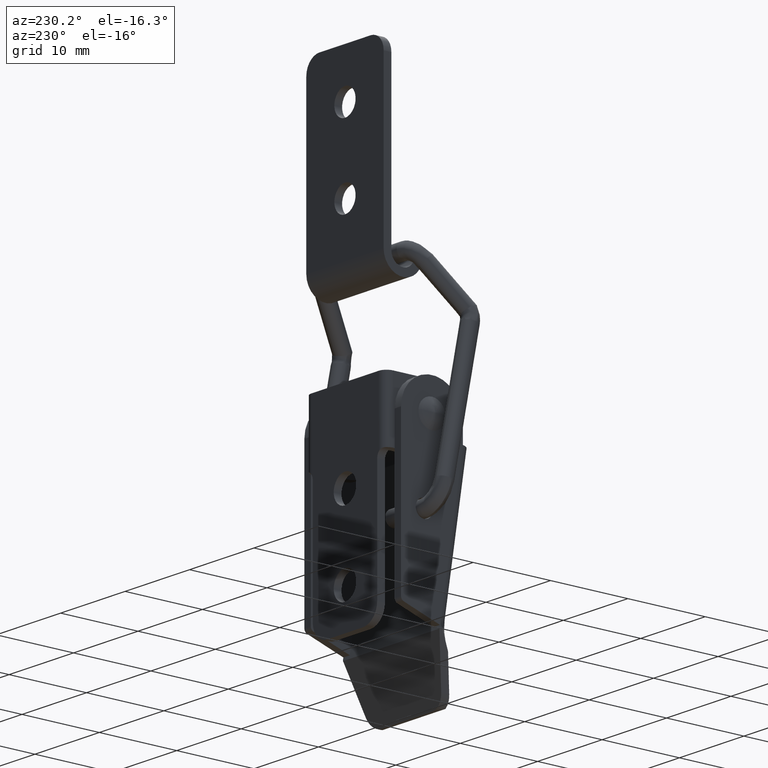
[diagram: clean part render]
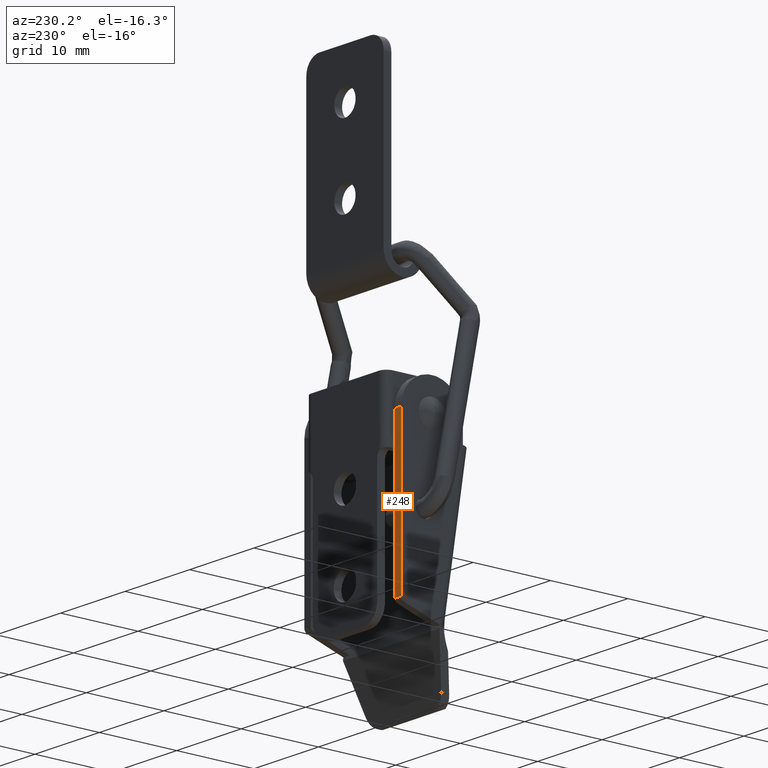
[diagram: same view with one face highlighted and labeled with its STEP entity id]
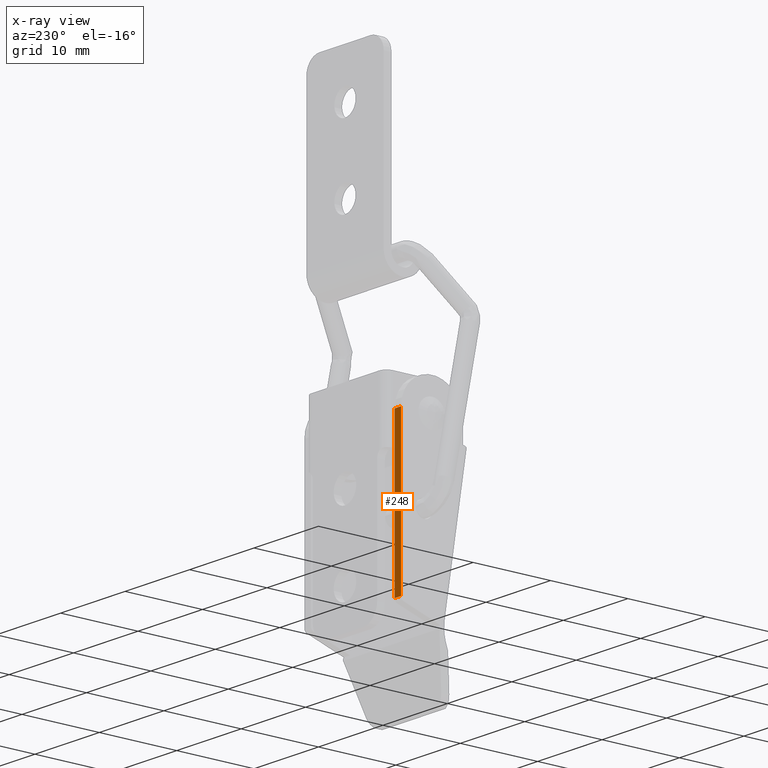
[diagram: x-ray of the same camera — body ghosted, the highlighted face saturated]
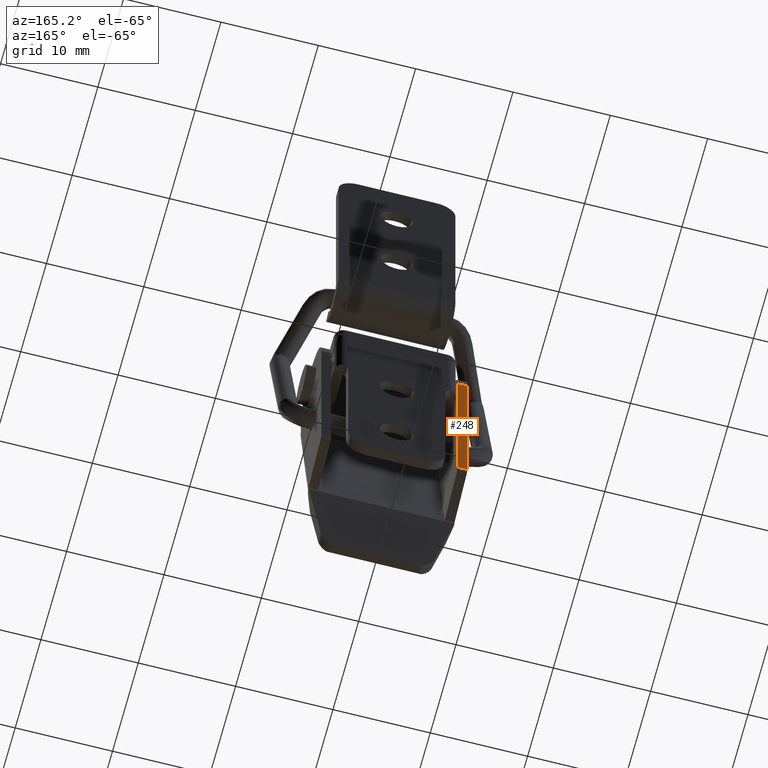
[diagram: same view with one face highlighted and labeled with its STEP entity id]
A machine part, auxiliary view. The second image highlights one B-rep face of the part: STEP entity #248.
The next image is the same camera in x-ray: the body ghosted, the highlighted face saturated — about 0% of this face is hidden behind the body in this view.
A second angle (auxiliary view) of the same face is appended — the face is thin or edge-on in the first view.
In plain terms, the highlighted planar face has unit normal (0, 1, 0).
Its self-contained STEP definition (entity closure, byte-faithful):
#248=ADVANCED_FACE('',(#946),#945,.T.);
#945=PLANE('',#1930);
#946=FACE_OUTER_BOUND('',#1931,.T.);
#1927=CARTESIAN_POINT('',(-7.60000000000E+00,4.00000000000E+00,-2.16035824518E+01));
#1928=DIRECTION('',(0.00000000000E+00,1.00000000000E+00,0.00000000000E+00));
#1929=DIRECTION('',(0.00000000000E+00,0.00000000000E+00,1.00000000000E+00));
#1930=AXIS2_PLACEMENT_3D('',#1927,#1928,#1929);
#1931=EDGE_LOOP('',(#3961,#3962,#3963,#3964));
#3961=ORIENTED_EDGE('',*,*,#4478,.T.);
#3962=ORIENTED_EDGE('',*,*,#4411,.T.);
#3963=ORIENTED_EDGE('',*,*,#4419,.F.);
#3964=ORIENTED_EDGE('',*,*,#4479,.F.);
#4411=EDGE_CURVE('',#5465,#5479,#5486,.T.);
#4419=EDGE_CURVE('',#5540,#5479,#5541,.T.);
#4478=EDGE_CURVE('',#5929,#5465,#5930,.T.);
#4479=EDGE_CURVE('',#5929,#5540,#5936,.T.);
#5465=VERTEX_POINT('',#7373);
#5479=VERTEX_POINT('',#7382);
#5486=LINE('',#7387,#7388);
#5540=VERTEX_POINT('',#7430);
#5541=LINE('',#7431,#7432);
#5929=VERTEX_POINT('',#7661);
#5930=LINE('',#7662,#7663);
#5936=LINE('',#7665,#7666);
#7373=CARTESIAN_POINT('',(-6.50000000000E+00,4.00000000000E+00,-1.96396204107E+01));
#7382=CARTESIAN_POINT('',(-7.50000000000E+00,4.00000000000E+00,-1.96396204107E+01));
#7387=CARTESIAN_POINT('',(-6.50000000000E+00,4.00000000000E+00,-1.96396204107E+01));
#7388=VECTOR('',#7389,1.00000000000E+00);
#7389=DIRECTION('',(-1.00000000000E+00,0.00000000000E+00,0.00000000000E+00));
#7430=CARTESIAN_POINT('',(-7.50000000000E+00,4.00000000000E+00,1.42108547152E-14));
#7431=CARTESIAN_POINT('',(-7.50000000000E+00,4.00000000000E+00,1.42108547152E-14));
#7432=VECTOR('',#7433,1.96396204107E+01);
#7433=DIRECTION('',(0.00000000000E+00,0.00000000000E+00,-1.00000000000E+00));
#7661=CARTESIAN_POINT('',(-6.50000000000E+00,4.00000000000E+00,1.42108547152E-14));
#7662=CARTESIAN_POINT('',(-6.50000000000E+00,4.00000000000E+00,1.42108547152E-14));
#7663=VECTOR('',#7664,1.96396204107E+01);
#7664=DIRECTION('',(0.00000000000E+00,0.00000000000E+00,-1.00000000000E+00));
#7665=CARTESIAN_POINT('',(-6.50000000000E+00,4.00000000000E+00,1.42108547152E-14));
#7666=VECTOR('',#7667,1.00000000000E+00);
#7667=DIRECTION('',(-1.00000000000E+00,0.00000000000E+00,0.00000000000E+00));